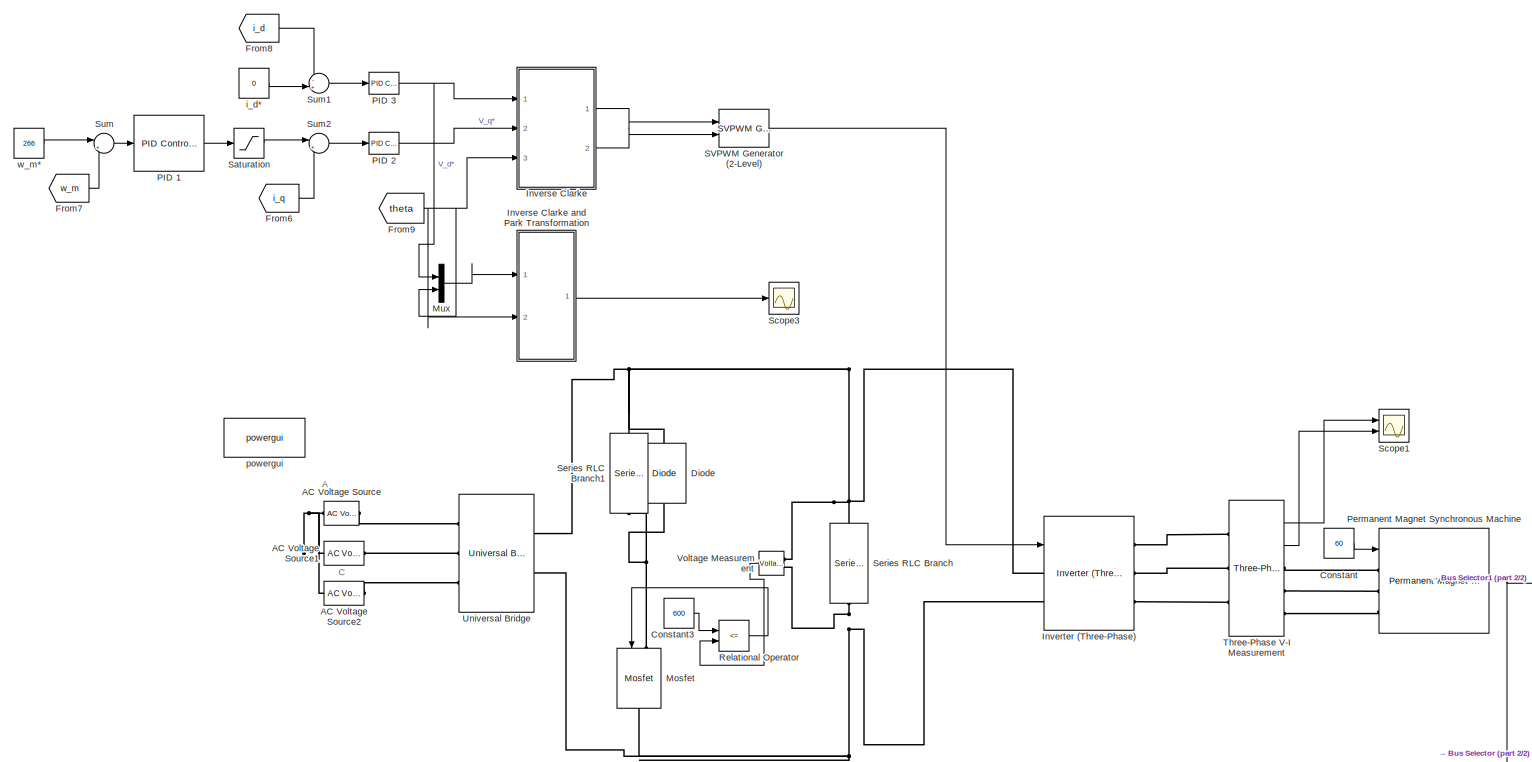
[diagram: root canvas - part 1/2, most of the canvas]
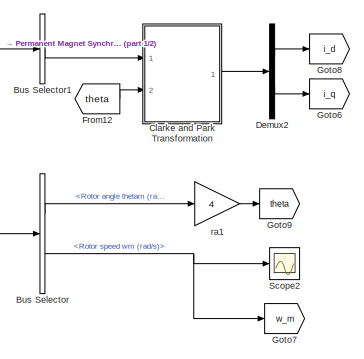
[diagram: root canvas - part 2/2, bottom right region]
MODEL slx_38a813f8197f
KIND model
CONFIG AbsTol = auto
CONFIG EnableMultiTasking = off
CONFIG FixedStep = auto
CONFIG MaxStep = auto
CONFIG MinStep = auto
CONFIG RelTol = 1e-3
CONFIG SampleTimeConstraint = Unconstrained
CONFIG Solver = VariableStepAuto
CONFIG SolverName = VariableStepAuto
CONFIG StartTime = 0.0
CONFIG StopTime = 4
BLOCK [Reference] AC Voltage Source  REF=powerlib/Electrical
Sources/AC Voltage Source
  Ports = [0, 0, 0, 0, 0, 1, 1]
  SourceBlock = powerlib/Electrical\nSources/AC Voltage Source
  SourceProductBaseCode = PS
  SourceProductName = Simscape Power Systems
  SourceType = AC Voltage Source
BLOCK [Reference] AC Voltage Source1  REF=powerlib/Electrical
Sources/AC Voltage Source
  Ports = [0, 0, 0, 0, 0, 1, 1]
  SourceBlock = powerlib/Electrical\nSources/AC Voltage Source
  SourceProductBaseCode = PS
  SourceProductName = Simscape Power Systems
  SourceType = AC Voltage Source
BLOCK [Reference] AC Voltage Source2  REF=powerlib/Electrical
Sources/AC Voltage Source
  Ports = [0, 0, 0, 0, 0, 1, 1]
  SourceBlock = powerlib/Electrical\nSources/AC Voltage Source
  SourceProductBaseCode = PS
  SourceProductName = Simscape Power Systems
  SourceType = AC Voltage Source
BLOCK [BusSelector] Bus Selector
  OutputAsBus = off
  OutputSignals = Rotor angle thetam (rad),Rotor speed wm (rad/s)
  Ports = [1, 2]
BLOCK [BusSelector] Bus Selector1
  OutputAsBus = on
  OutputSignals = Stator current is_a (A),Stator current is_b (A),Stator current is_c (A)
  Ports = [1, 1]
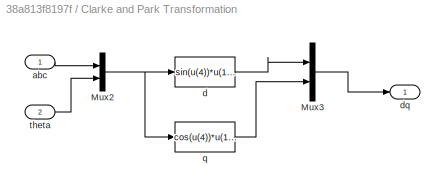
BLOCK [SubSystem] Clarke and Park Transformation
  Ports = [2, 1]
  RequestExecContextInheritance = off
BLOCK [Mux] Clarke and Park Transformation/Mux2
  DisplayOption = bar
  Inputs = 2
  Ports = [2, 1]
BLOCK [Mux] Clarke and Park Transformation/Mux3
  DisplayOption = bar
  Inputs = 2
  Ports = [2, 1]
BLOCK [Inport] Clarke and Park Transformation/abc
  IconDisplay = Port number
BLOCK [Fcn] Clarke and Park Transformation/d
  Expr = sin(u(4))*u(1) + sin(u(4)-2*pi/3)*u(2) + sin(u(4)+2*pi/3)*u(3)
BLOCK [Outport] Clarke and Park Transformation/dq
  IconDisplay = Port number
BLOCK [Fcn] Clarke and Park Transformation/q
  Expr = cos(u(4))*u(1) + cos(u(4)-2*pi/3)*u(2) + cos(u(4)+2*pi/3)*u(3)
BLOCK [Inport] Clarke and Park Transformation/theta
  IconDisplay = Port number
  Port = 2
BLOCK [Constant] Constant
  Value = 60
BLOCK [Constant] Constant3
  Value = 600
BLOCK [Demux] Demux2
  DisplayOption = bar
  Outputs = 2
  Ports = [1, 2]
BLOCK [Reference] Diode  REF=powerlib/Power
Electronics/Diode
  Ports = [0, 0, 0, 0, 0, 1, 1]
  SourceBlock = powerlib/Power\nElectronics/Diode
  SourceProductBaseCode = PS
  SourceProductName = Simscape Power Systems
  SourceType = Diode
BLOCK [From] From12
  GotoTag = theta
BLOCK [From] From6
  GotoTag = i_q
BLOCK [From] From7
  GotoTag = w_m
BLOCK [From] From8
  GotoTag = i_d
BLOCK [From] From9
  GotoTag = theta
BLOCK [Goto] Goto6
  GotoTag = i_q
BLOCK [Goto] Goto7
  GotoTag = w_m
BLOCK [Goto] Goto8
  GotoTag = i_d
BLOCK [Goto] Goto9
  GotoTag = theta
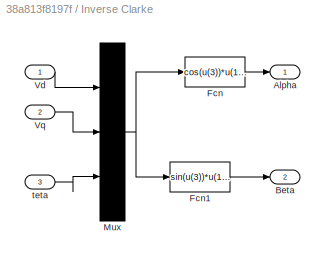
BLOCK [SubSystem] Inverse Clarke
  Ports = [3, 2]
  RequestExecContextInheritance = off
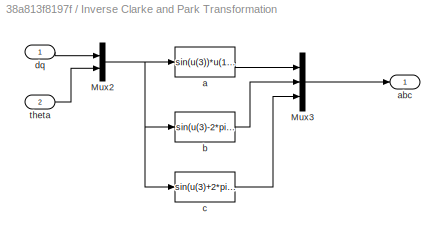
BLOCK [SubSystem] Inverse Clarke and Park Transformation
  Ports = [2, 1]
  RequestExecContextInheritance = off
BLOCK [Mux] Inverse Clarke and Park Transformation/Mux2
  DisplayOption = bar
  Inputs = 2
  Ports = [2, 1]
BLOCK [Mux] Inverse Clarke and Park Transformation/Mux3
  DisplayOption = bar
  Inputs = 3
  Ports = [3, 1]
BLOCK [Fcn] Inverse Clarke and Park Transformation/a
  Expr = sin(u(3))*u(1) + cos(u(3))*u(2)
BLOCK [Outport] Inverse Clarke and Park Transformation/abc
  IconDisplay = Port number
BLOCK [Fcn] Inverse Clarke and Park Transformation/b
  Expr = sin(u(3)-2*pi/3)*u(1) + cos(u(3)-2*pi/3)*u(2)
BLOCK [Fcn] Inverse Clarke and Park Transformation/c
  Expr = sin(u(3)+2*pi/3)*u(1) + cos(u(3)+2*pi/3)*u(2)
BLOCK [Inport] Inverse Clarke and Park Transformation/dq
  IconDisplay = Port number
BLOCK [Inport] Inverse Clarke and Park Transformation/theta
  IconDisplay = Port number
  Port = 2
BLOCK [Outport] Inverse Clarke/Alpha
  IconDisplay = Port number
BLOCK [Outport] Inverse Clarke/Beta
  IconDisplay = Port number
  Port = 2
BLOCK [Fcn] Inverse Clarke/Fcn
  Expr = cos(u(3))*u(1) - sin(u(3))*u(2)
BLOCK [Fcn] Inverse Clarke/Fcn1
  Expr = sin(u(3))*u(1) + cos(u(3))*u(2)
BLOCK [Mux] Inverse Clarke/Mux
  DisplayOption = bar
  Inputs = 3
  Ports = [3, 1]
BLOCK [Inport] Inverse Clarke/Vd
  IconDisplay = Port number
BLOCK [Inport] Inverse Clarke/Vq
  IconDisplay = Port number
  Port = 2
BLOCK [Inport] Inverse Clarke/teta 
  IconDisplay = Port number
  Port = 3
BLOCK [Reference] Inverter (Three-Phase)  REF=electricdrivelib/Fundamental Drive Blocks/Inverter
(Three-Phase)
  AttributesFormatString = %<BlockChoice>
  Ports = [1, 0, 0, 0, 0, 2, 3]
  SourceBlock = electricdrivelib/Fundamental Drive Blocks/Inverter\n(Three-Phase)
  SourceProductBaseCode = PS
  SourceProductName = Simscape Power Systems
  SourceType = Inverter (Three-phase)
BLOCK [Reference] Mosfet  REF=powerlib/Power
Electronics/Mosfet
  Ports = [1, 0, 0, 0, 0, 1, 1]
  SourceBlock = powerlib/Power\nElectronics/Mosfet
  SourceProductBaseCode = PS
  SourceProductName = Simscape Power Systems
  SourceType = Mosfet
BLOCK [Mux] Mux
  DisplayOption = bar
  Inputs = 2
  Ports = [2, 1]
BLOCK [Reference] PID 1  REF=simulink/Continuous/PID Controller
  Ports = [1, 1]
  SourceBlock = simulink/Continuous/PID Controller
  SourceProductBaseCode = SL
  SourceProductName = Simulink
  SourceType = PID 1dof
BLOCK [Reference] PID 2  REF=simulink/Continuous/PID Controller
  Ports = [1, 1]
  SourceBlock = simulink/Continuous/PID Controller
  SourceProductBaseCode = SL
  SourceProductName = Simulink
  SourceType = PID 1dof
BLOCK [Reference] PID 3  REF=simulink/Continuous/PID Controller
  Ports = [1, 1]
  SourceBlock = simulink/Continuous/PID Controller
  SourceProductBaseCode = SL
  SourceProductName = Simulink
  SourceType = PID 1dof
BLOCK [Reference] Permanent Magnet Synchronous Machine  REF=powerlib/Machines/Permanent Magnet
Synchronous Machine
  Ports = [1, 1, 0, 0, 0, 3]
  SourceBlock = powerlib/Machines/Permanent Magnet\nSynchronous Machine
  SourceProductBaseCode = PS
  SourceProductName = Simscape Power Systems
  SourceType = Permanent Magnet Synchronous Machine
BLOCK [RelationalOperator] Relational Operator
  InputSameDT = off
  Operator = <=
  OutDataTypeStr = boolean
  Ports = [2, 1]
  RndMeth = Simplest
BLOCK [Reference] SVPWM Generator (2-Level)  REF=powerlib_meascontrol/Pulse & Signal
Generators/SVPWM Generator
(2-Level)
  Ports = [2, 1]
  SourceBlock = powerlib_meascontrol/Pulse & Signal\nGenerators/SVPWM Generator\n(2-Level)
  SourceProductBaseCode = PS
  SourceProductName = Simscape Power Systems
  SourceType = SVPWM Generator (2-Level)
BLOCK [Saturate] Saturation
  InputPortMap = u0
  LowerLimit = -250
  Ports = [1, 1]
  UpperLimit = 250
BLOCK [Scope] Scope1
  Floating = off
  NumInputPorts = 2
  Ports = [2]
  ScopeSpecificationString = Simulink.scopes.TimeScopeBlockCfg('CurrentConfiguration', extmgr.ConfigurationSet(extmgr.Configuration('Core','General UI',true,'FigureColor',[1 1 1]),extmgr.Configuration('Core','Source UI',true),extmgr.Configuration('Sources','WiredSimulink',true,'DataLoggingVariableName','ScopeData1'),extmgr.Configuration('Visuals','Time Domain',true,'SerializedDisplays',{struct('MinYLimReal','-709.44584','MaxY...<+2419ch>
BLOCK [Scope] Scope2
  Floating = off
  NumInputPorts = 1
  Ports = [1]
  ScopeSpecificationString = Simulink.scopes.TimeScopeBlockCfg('CurrentConfiguration', extmgr.ConfigurationSet(extmgr.Configuration('Core','General UI',true,'FigureColor',[1 1 1]),extmgr.Configuration('Core','Source UI',true),extmgr.Configuration('Sources','WiredSimulink',true),extmgr.Configuration('Visuals','Time Domain',true,'SerializedDisplays',{struct('MinYLimReal','236.97717','MaxYLimReal','266.9875','YLabelReal','','Min...<+1543ch>
BLOCK [Scope] Scope3
  Floating = off
  NumInputPorts = 1
  Ports = [1]
  ScopeSpecificationString = Simulink.scopes.TimeScopeBlockCfg('CurrentConfiguration', extmgr.ConfigurationSet(extmgr.Configuration('Core','General UI',true,'FigureColor',[1 1 1]),extmgr.Configuration('Core','Source UI',true),extmgr.Configuration('Sources','WiredSimulink',true,'DataLoggingVariableName','ScopeData2'),extmgr.Configuration('Visuals','Time Domain',true,'SerializedDisplays',{struct('MinYLimReal','-9003.61416','Max...<+1698ch>
BLOCK [Reference] Series RLC Branch  REF=powerlib/Elements/Series RLC Branch
  Ports = [0, 0, 0, 0, 0, 1, 1]
  SourceBlock = powerlib/Elements/Series RLC Branch
  SourceProductBaseCode = PS
  SourceProductName = Simscape Power Systems
  SourceType = Series RLC Branch
BLOCK [Reference] Series RLC Branch1  REF=powerlib/Elements/Series RLC Branch
  Ports = [0, 0, 0, 0, 0, 1, 1]
  SourceBlock = powerlib/Elements/Series RLC Branch
  SourceProductBaseCode = PS
  SourceProductName = Simscape Power Systems
  SourceType = Series RLC Branch
BLOCK [Sum] Sum
  IconShape = round
  InputSameDT = off
  Inputs = |+-
  OutDataTypeStr = Inherit: Inherit via internal rule
  Ports = [2, 1]
  SaturateOnIntegerOverflow = off
BLOCK [Sum] Sum1
  IconShape = round
  InputSameDT = off
  Inputs = -+|
  OutDataTypeStr = Inherit: Inherit via internal rule
  Ports = [2, 1]
  SaturateOnIntegerOverflow = off
BLOCK [Sum] Sum2
  IconShape = round
  InputSameDT = off
  Inputs = |+-
  OutDataTypeStr = Inherit: Inherit via internal rule
  Ports = [2, 1]
  SaturateOnIntegerOverflow = off
BLOCK [Reference] Three-Phase V-I Measurement  REF=powerlib/Measurements/Three-Phase
V-I Measurement
  Ports = [0, 2, 0, 0, 0, 3, 3]
  SourceBlock = powerlib/Measurements/Three-Phase\nV-I Measurement
  SourceProductBaseCode = PS
  SourceProductName = Simscape Power Systems
  SourceType = Three-Phase VI Measurement
BLOCK [Reference] Universal Bridge  REF=powerlib/Power
Electronics/Universal Bridge
  Ports = [0, 0, 0, 0, 0, 3, 2]
  SourceBlock = powerlib/Power\nElectronics/Universal Bridge
  SourceProductBaseCode = PS
  SourceProductName = Simscape Power Systems
  SourceType = Universal Bridge
BLOCK [Reference] Voltage Measurement  REF=powerlib/Measurements/Voltage Measurement
  Ports = [0, 1, 0, 0, 0, 2]
  SourceBlock = powerlib/Measurements/Voltage Measurement
  SourceProductBaseCode = PS
  SourceProductName = Simscape Power Systems
  SourceType = Voltage Measurement
  UserDataPersistent = on
BLOCK [Constant] i_d*
  Value = 0
BLOCK [Reference] powergui  REF=powerlib/powergui
  Ports = []
  Priority = 1
  SourceBlock = powerlib/powergui
  SourceProductBaseCode = PS
  SourceProductName = Simscape Power Systems
  SourceType = PSB option menu block
BLOCK [Gain] ra1
  Gain = 4
  OutDataTypeStr = Inherit: Inherit via internal rule
  ParamDataTypeStr = Inherit: Inherit via internal rule
  SaturateOnIntegerOverflow = off
BLOCK [Constant] w_m*
  Value = 266
ANNOTATION (root): A
ANNOTATION (root): C
LINE Bus Selector1:1 -> Clarke and Park Transformation:1
LINE Bus Selector:1 -> ra1:1
NET Bus Selector:2 -> Goto7:1, Scope2:1
NET Clarke and Park Transformation/Mux2:1 -> Clarke and Park Transformation/d:1, Clarke and Park Transformation/q:1
LINE Clarke and Park Transformation/Mux3:1 -> Clarke and Park Transformation/dq:1
LINE Clarke and Park Transformation/abc:1 -> Clarke and Park Transformation/Mux2:1
LINE Clarke and Park Transformation/d:1 -> Clarke and Park Transformation/Mux3:1
LINE Clarke and Park Transformation/q:1 -> Clarke and Park Transformation/Mux3:2
LINE Clarke and Park Transformation/theta:1 -> Clarke and Park Transformation/Mux2:2
LINE Clarke and Park Transformation:1 -> Demux2:1
LINE Constant3:1 -> Relational Operator:1
LINE Constant:1 -> Permanent Magnet Synchronous Machine:1
LINE Demux2:1 -> Goto8:1
LINE Demux2:2 -> Goto6:1
LINE From12:1 -> Clarke and Park Transformation:2
LINE From6:1 -> Sum2:2
LINE From7:1 -> Sum:2
LINE From8:1 -> Sum1:1
NET From9:1 -> Inverse Clarke and Park Transformation:2, Inverse Clarke:3, Mux:2
NET Inverse Clarke and Park Transformation/Mux2:1 -> Inverse Clarke and Park Transformation/a:1, Inverse Clarke and Park Transformation/b:1, Inverse Clarke and Park Transformation/c:1
LINE Inverse Clarke and Park Transformation/Mux3:1 -> Inverse Clarke and Park Transformation/abc:1
LINE Inverse Clarke and Park Transformation/a:1 -> Inverse Clarke and Park Transformation/Mux3:1
LINE Inverse Clarke and Park Transformation/b:1 -> Inverse Clarke and Park Transformation/Mux3:2
LINE Inverse Clarke and Park Transformation/c:1 -> Inverse Clarke and Park Transformation/Mux3:3
LINE Inverse Clarke and Park Transformation/dq:1 -> Inverse Clarke and Park Transformation/Mux2:1
LINE Inverse Clarke and Park Transformation/theta:1 -> Inverse Clarke and Park Transformation/Mux2:2
LINE Inverse Clarke and Park Transformation:1 -> Scope3:1
LINE Inverse Clarke/Fcn1:1 -> Inverse Clarke/Beta:1
LINE Inverse Clarke/Fcn:1 -> Inverse Clarke/Alpha:1
NET Inverse Clarke/Mux:1 -> Inverse Clarke/Fcn1:1, Inverse Clarke/Fcn:1
LINE Inverse Clarke/Vd:1 -> Inverse Clarke/Mux:1
LINE Inverse Clarke/Vq:1 -> Inverse Clarke/Mux:2
LINE Inverse Clarke/teta :1 -> Inverse Clarke/Mux:3
LINE Inverse Clarke:1 -> SVPWM Generator (2-Level):1
LINE Inverse Clarke:2 -> SVPWM Generator (2-Level):2
LINE Mux:1 -> Inverse Clarke and Park Transformation:1
LINE PID 1:1 -> Saturation:1
LINE PID 2:1 -> Inverse Clarke:2
NET PID 3:1 -> Inverse Clarke:1, Mux:1
NET Permanent Magnet Synchronous Machine:1 -> Bus Selector1:1, Bus Selector:1
LINE Relational Operator:1 -> Mosfet:1
LINE SVPWM Generator (2-Level):1 -> Inverter (Three-Phase):1
LINE Saturation:1 -> Sum2:1
LINE Sum1:1 -> PID 3:1
LINE Sum2:1 -> PID 2:1
LINE Sum:1 -> PID 1:1
LINE Three-Phase V-I Measurement:1 -> Scope1:1
LINE Three-Phase V-I Measurement:2 -> Scope1:2
LINE Voltage Measurement:1 -> Relational Operator:2
LINE i_d*:1 -> Sum1:2
LINE ra1:1 -> Goto9:1
LINE w_m*:1 -> Sum:1
PNET net1: AC Voltage Source1:LConn1 -- AC Voltage Source2:LConn1 -- AC Voltage Source:LConn1
PLINE AC Voltage Source1:RConn1 -- Universal Bridge:LConn2
PLINE AC Voltage Source2:RConn1 -- Universal Bridge:LConn3
PLINE AC Voltage Source:RConn1 -- Universal Bridge:LConn1
PNET net2: Diode:LConn1 -- Mosfet:LConn1 -- Series RLC Branch1:RConn1
PNET net3: Diode:RConn1 -- Inverter (Three-Phase):LConn1 -- Series RLC Branch1:LConn1 -- Series RLC Branch:LConn1 -- Universal Bridge:RConn1 -- Voltage Measurement:LConn1
PNET net4: Inverter (Three-Phase):LConn2 -- Mosfet:RConn1 -- Series RLC Branch:RConn1 -- Universal Bridge:RConn2 -- Voltage Measurement:LConn2
PLINE Inverter (Three-Phase):RConn1 -- Three-Phase V-I Measurement:LConn1
PLINE Inverter (Three-Phase):RConn2 -- Three-Phase V-I Measurement:LConn2
PLINE Inverter (Three-Phase):RConn3 -- Three-Phase V-I Measurement:LConn3
PLINE Permanent Magnet Synchronous Machine:LConn1 -- Three-Phase V-I Measurement:RConn1
PLINE Permanent Magnet Synchronous Machine:LConn2 -- Three-Phase V-I Measurement:RConn2
PLINE Permanent Magnet Synchronous Machine:LConn3 -- Three-Phase V-I Measurement:RConn3
note: NET lines group one-source signal fan-out (src -> all destinations, sorted); 1:1 wires keep LINE; PNET lines group multi-terminal physical nets as a canonical sorted terminal list (undirected conserving connections); 2-terminal nets keep the pairwise PLINE form
